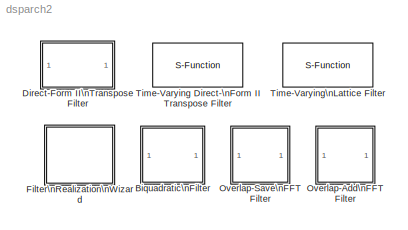
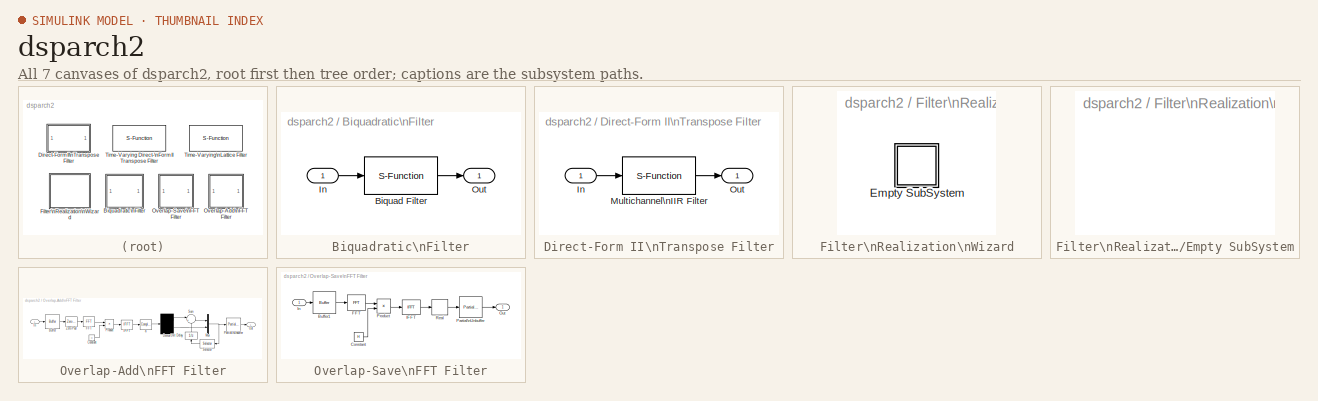
[diagram: thumbnail index - all 7 canvases of the model, root first then tree order]
MODEL dsparch2
KIND library
BLOCK [SubSystem] Biquadratic\nFilter
  MaskCallbackString = ||dspblkbiquad|
  MaskDescription = Direct-Form II Transpose implementation of second-order (biquadratic) IIR filter sections.  Coefficients must be expressed using an Mx6 second-order section (SOS) matrix.  The number of second-order sections (M) appears in the lower-right corner of the icon.\n\nSee \"ss2sos\" for more information on SOS matrices.
  MaskDisplay = plot(x,y);\ntext(.975,0.1,s,'horiz','right');\ntext(0.1,.9,'BiQuad')\n
  MaskEnableString = on,on,on,off
  MaskHelp = web(dspbhelp);
  MaskIconFrame = on
  MaskIconOpaque = on
  MaskIconRotate = none
  MaskIconUnits = normalized
  MaskInitialization = [x,y,s]=dspblkbiquad('icon',sos);\n[h,fchans]=dspblkbiquad('init',sos,frame,nchans);\n\n
  MaskPromptString = SOS matrix:|Initial conditions:|Frame-based inputs|Number of channels:
  MaskSelfModifiable = on
  MaskStyleString = edit,edit,checkbox,edit
  MaskTunableValueString = off,off,off,off
  MaskType = Biquadratic Filter
  MaskValueString = [0.0864663705046504 0.172963265055902 0.0864691222801249 1 -0.835073472386969 0.180972230227646;0.0910631887324868 0.184433970597206 0.0934004367730367 1 -0.890597579638043 0.259495175740772;0.10515199960233 0.210266887507767 0.105148652679738 1 -1.0153398584545 0.43590739824434;0.13033445611126 0.257366152017378 0.127072973655515 1 -1.24277336269468 0.75754694447883]|0|off|1
  MaskVariables = sos=@1;ic=@2;frame=@3;nchans=@4;
  MaskVisibilityString = on,on,on,on
  Ports = [1, 1, 0, 0, 0]
  ShowPortLabels = on
BLOCK [S-Function] Biquadratic\nFilter/Biquad Filter
  FunctionName = sdspbiquad
  Parameters = h,ic,fchans
  PortCounts = []
  Ports = [1, 1, 0, 0, 0]
  SFunctionModules = ''
BLOCK [Inport] Biquadratic\nFilter/In
  DataType = auto
  Interpolate = on
  Port = 1
  PortWidth = -1
  SampleTime = -1
  SignalType = auto
BLOCK [Outport] Biquadratic\nFilter/Out
  InitialOutput = 0
  OutputWhenDisabled = held
  Port = 1
BLOCK [SubSystem] Direct-Form II\nTranspose Filter
  MaskCallbackString = |||dspblkdf2t|
  MaskDescription = Independently filters each channel of input over time using a Direct-Form II Transpose  implementation.  Initial conditions are interpreted in the same manner as MATLAB's \"filter\" command.\n\nFor frame-based processing, each column of the input matrix represents one frame of data from a single channel.
  MaskDisplay = plot(x,y);\ntext(0.5,.85,'DF2T','horiz','center');
  MaskEnableString = on,on,on,on,off
  MaskHelp = web(dspbhelp);
  MaskIconFrame = on
  MaskIconOpaque = on
  MaskIconRotate = none
  MaskIconUnits = normalized
  MaskInitialization = [x,y] = dspblkdf2t('icon',num,den);\nif strcmp(frame,'off'), numCHANS=-1; end\n[num,den] = dspblkdf2t('design',num,den);\n
  MaskPromptString = Numerator:|Denominator:|Initial conditions:|Frame-based inputs|Number of channels:
  MaskSelfModifiable = on
  MaskStyleString = edit,edit,edit,checkbox,edit
  MaskTunableValueString = on,on,on,off,off
  MaskType = Direct-Form II Transpose Filter
  MaskValueString = [1 2]|1|0|off|1
  MaskVariables = num=@1;den=@2;ic=@3;frame=&4;numCHANS=@5;
  MaskVisibilityString = on,on,on,on,on
  Ports = [1, 1, 0, 0, 0]
  ShowPortLabels = on
BLOCK [Inport] Direct-Form II\nTranspose Filter/In
  DataType = auto
  Interpolate = on
  Port = 1
  PortWidth = -1
  SampleTime = -1
  SignalType = auto
BLOCK [S-Function] Direct-Form II\nTranspose Filter/Multichannel\nIIR Filter
  FunctionName = sdspdf2t
  Parameters = num,den,ic,numCHANS
  PortCounts = []
  Ports = [1, 1, 0, 0, 0]
  SFunctionModules = ''
BLOCK [Outport] Direct-Form II\nTranspose Filter/Out
  InitialOutput = 0
  OutputWhenDisabled = held
  Port = 1
BLOCK [SubSystem] Filter\nRealization\nWizard
  MaskDescription = Automatically construct filter realizations with specific architectures, using sum, gain, and delay blocks.
  MaskDisplay = plot([[xl NaN xz NaN xg NaN xs NaN]*.9-.075 xw],\n[[yl NaN yz NaN yg NaN ys NaN]*.9-.1 yw]);
  MaskHelp = web(dspbhelp);
  MaskIconFrame = on
  MaskIconOpaque = on
  MaskIconRotate = none
  MaskIconUnits = normalized
  MaskInitialization = xw=[NaN 0.8 0.8 NaN 0.687 0.743 NaN 0.64 0.72 NaN 0.687 0.743 NaN 0.8 0.8 NaN 0.913 0.857 NaN 0.96 0.88 NaN 0.808 0.792 0.961 0.978 0.808 NaN 0.825 0.808 NaN 0.961 0.944];\nyw=[NaN 0.64 0.72 NaN 0.687 0.743 NaN 0.8 0.8 NaN 0.913 0.857 NaN 0.96 0.88 NaN 0.913 0.857 NaN 0.8 0.8 NaN 0.808 0.792 0.622 0.639 0.808 NaN 0.792 0.775 NaN 0.656 0.639];\n\nxl = [.1 .7 NaN .3 .3 NaN .7 .7 NaN .3 .3 NaN .7 .7 ...<+353ch>
  MaskType = Filter Realization Wizard
  OpenFcn = dspfwiz
  Ports = [0, 0, 0, 0, 0]
  ShowPortLabels = on
BLOCK [SubSystem] Filter\nRealization\nWizard/Empty SubSystem
  Ports = [0, 0, 0, 0, 0]
  ShowPortLabels = on
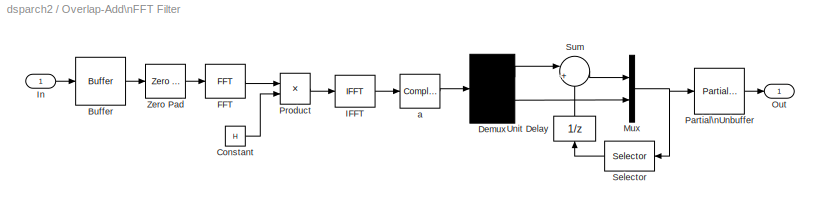
BLOCK [SubSystem] Overlap-Add\nFFT Filter
  MaskCallbackString = |
  MaskDescription = FFT based filtering using the overlap-add algorithm.
  MaskDisplay = disp('Overlap\\nAdd');\n... plot(log10(abs(H(1:(N/2)))))
  MaskEnableString = on,on
  MaskHelp = web(dspbhelp);
  MaskIconFrame = on
  MaskIconOpaque = on
  MaskIconRotate = none
  MaskIconUnits = autoscale
  MaskInitialization = M = length(h); N=2.^nextpow2(Nfft); L=N-M+1;\nH = freqz(h,1,N,'whole');\n
  MaskPromptString = FFT size: |FIR coefficients:
  MaskStyleString = edit,edit
  MaskTunableValueString = off,off
  MaskType = Overlap-Add FFT Filter
  MaskValueString = 64|fir1(20,0.1)
  MaskVariables = Nfft=@1;h=@2;
  MaskVisibilityString = on,on
  Ports = [1, 1, 0, 0, 0]
  ShowPortLabels = on
BLOCK [Reference] Overlap-Add\nFFT Filter/Buffer  REF=dspbuff2/Buffer
  N = L
  Ports = [1, 1, 0, 0, 0]
  SourceBlock = dspbuff2/Buffer
  SourceType = Buffer
  V = 0
  ic = 0
BLOCK [Constant] Overlap-Add\nFFT Filter/Constant
  Value = H
BLOCK [Demux] Overlap-Add\nFFT Filter/Demux
  Outputs = [M-1 L]
  Ports = [1, 2, 0, 0, 0]
BLOCK [Reference] Overlap-Add\nFFT Filter/FFT  REF=dspxfrm2/FFT
  Ports = [1, 1, 0, 0, 0]
  SourceBlock = dspxfrm2/FFT
  SourceType = FFT
  nchans = 1
BLOCK [Reference] Overlap-Add\nFFT Filter/IFFT  REF=dspxfrm2/IFFT
  Ports = [1, 1, 0, 0, 0]
  SourceBlock = dspxfrm2/IFFT
  SourceType = IFFT
  cs_in = off
  mode = Complex
  nchans = 1
BLOCK [Inport] Overlap-Add\nFFT Filter/In
  DataType = auto
  Interpolate = on
  Port = 1
  PortWidth = -1
  SampleTime = -1
  SignalType = auto
BLOCK [Mux] Overlap-Add\nFFT Filter/Mux
  DisplayOption = bar
  Inputs = 2
  Ports = [2, 1, 0, 0, 0]
BLOCK [Outport] Overlap-Add\nFFT Filter/Out
  InitialOutput = 0
  OutputWhenDisabled = held
  Port = 1
BLOCK [Reference] Overlap-Add\nFFT Filter/Partial\nUnbuffer  REF=dspbuff2/Partial\nUnbuffer
  N = N
  N1 = 1
  N2 = L
  Ports = [1, 1, 0, 0, 0]
  SourceBlock = dspbuff2/Partial\nUnbuffer
  SourceType = Partial Unbuffer
  ic = 0
  num_chans = 1
BLOCK [Product] Overlap-Add\nFFT Filter/Product
  Inputs = 2
  Ports = [2, 1, 0, 0, 0]
  SaturateOnIntegerOverflow = on
BLOCK [Selector] Overlap-Add\nFFT Filter/Selector
  Elements = [(N-M+2):N]
  InputPortWidth = N
BLOCK [Sum] Overlap-Add\nFFT Filter/Sum
  IconShape = round
  Inputs = |++
  Ports = [2, 1, 0, 0, 0]
  SaturateOnIntegerOverflow = on
BLOCK [UnitDelay] Overlap-Add\nFFT Filter/Unit Delay
  SampleTime = -1
  X0 = 0
BLOCK [Reference] Overlap-Add\nFFT Filter/Zero Pad  REF=dspbdsp2/Zero Pad
  Ports = [1, 1, 0, 0, 0]
  SourceBlock = dspbdsp2/Zero Pad
  SourceType = Zero Pad
  nchans = 1
  pad = N
  trunc = on
BLOCK [ComplexToRealImag] Overlap-Add\nFFT Filter/a
  Output = Real
  Ports = [1, 1, 0, 0, 0]
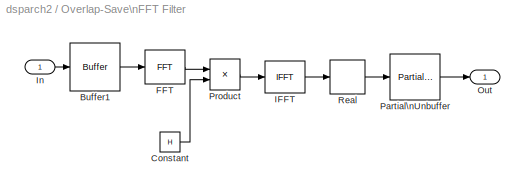
BLOCK [SubSystem] Overlap-Save\nFFT Filter
  MaskCallbackString = |
  MaskDescription = FFT based filtering using the overlap-save algorithm.
  MaskDisplay = disp('Overlap\\nSave');\n... plot(log10(abs(H(1:(nfft/2)))))
  MaskEnableString = on,on
  MaskHelp = web(dspbhelp);
  MaskIconFrame = on
  MaskIconOpaque = on
  MaskIconRotate = none
  MaskIconUnits = autoscale
  MaskInitialization = nfft = 2.^nextpow2(nfft_in);\nn = length(h); H = freqz(h,1,nfft,'whole');\n
  MaskPromptString = FFT size: |FIR coefficients:
  MaskStyleString = edit,edit
  MaskTunableValueString = off,off
  MaskType = Overlap-Save FFT Filter
  MaskValueString = 64|fir1(20,0.1)
  MaskVariables = nfft_in=@1;h=@2;
  MaskVisibilityString = on,on
  Ports = [1, 1, 0, 0, 0]
  ShowPortLabels = on
BLOCK [Reference] Overlap-Save\nFFT Filter/Buffer1  REF=dspbuff2/Buffer
  N = nfft
  Ports = [1, 1, 0, 0, 0]
  SourceBlock = dspbuff2/Buffer
  SourceType = Buffer
  V = n-1
  ic = 0
BLOCK [Constant] Overlap-Save\nFFT Filter/Constant
  Value = H
BLOCK [Reference] Overlap-Save\nFFT Filter/FFT  REF=dspxfrm2/FFT
  Ports = [1, 1, 0, 0, 0]
  SourceBlock = dspxfrm2/FFT
  SourceType = FFT
  nchans = 1
BLOCK [Reference] Overlap-Save\nFFT Filter/IFFT  REF=dspxfrm2/IFFT
  Ports = [1, 1, 0, 0, 0]
  SourceBlock = dspxfrm2/IFFT
  SourceType = IFFT
  cs_in = off
  mode = Complex
  nchans = 1
BLOCK [Inport] Overlap-Save\nFFT Filter/In
  DataType = auto
  Interpolate = on
  Port = 1
  PortWidth = -1
  SampleTime = -1
  SignalType = auto
BLOCK [Outport] Overlap-Save\nFFT Filter/Out
  InitialOutput = 0
  OutputWhenDisabled = held
  Port = 1
BLOCK [Reference] Overlap-Save\nFFT Filter/Partial\nUnbuffer  REF=dspbuff2/Partial\nUnbuffer
  N = nfft
  N1 = n
  N2 = nfft
  Ports = [1, 1, 0, 0, 0]
  SourceBlock = dspbuff2/Partial\nUnbuffer
  SourceType = Partial Unbuffer
  ic = 0
  num_chans = 1
BLOCK [Product] Overlap-Save\nFFT Filter/Product
  Inputs = 2
  Ports = [2, 1, 0, 0, 0]
  SaturateOnIntegerOverflow = on
BLOCK [ComplexToRealImag] Overlap-Save\nFFT Filter/Real
  Output = Real
  Ports = [1, 1, 0, 0, 0]
BLOCK [S-Function] Time-Varying Direct-\nForm II Transpose Filter
  FunctionName = sdspvdf2t
  MaskCallbackString = |||dspblkvdf2t||
  MaskDescription = Independently filters each channel of input over time using a Direct-Form II Transpose implementation.  Filter coefficients can vary over time.\n\nInitial conditions are interpreted in the same manner as MATLAB's \"filter\" command.  However, this time-varying filter uses a different normalization scheme and the initial conditions and internal filter states are not equivalent to those from \"filte...<+320ch>
  MaskDisplay = text(0.5,0.85,s.icon,'horiz','center');\nplot(s.x, s.y);\nport_label('input',1,'In');\nport_label('output',1,'Out');\nport_label('input',s.i1,s.s1);\nport_label('input',s.i2,s.s2);
  MaskEnableString = on,on,on,on,off,off
  MaskHelp = web(dspbhelp);
  MaskIconFrame = on
  MaskIconOpaque = on
  MaskIconRotate = none
  MaskIconUnits = normalized
  MaskInitialization = s = dspblkvdf2t(NumDen);\nif strcmp(frame,'off') numCHANS = -1; end
  MaskPromptString = Filter type:|Initial conditions:|Support non-normalized filters|Frame-based inputs|Number of channels:|Filter update rate:
  MaskSelfModifiable = on
  MaskStyleString = popup(Pole-Zero (IIR)|All-Zero (FIR)|All-Pole (AR)),edit,checkbox,checkbox,edit,popup(One Filter Per Sample Time|One Filter Per Frame Time)
  MaskTunableValueString = off,off,off,off,off,off
  MaskType = Time-Varying Direct-Form II Transpose Filter
  MaskValueString = Pole-Zero (IIR)|0|on|off|1|One Filter Per Sample Time
  MaskVariables = NumDen=@1;ic=@2;filtCheck=@3;frame=&4;numCHANS=@5;FiltPerFrame=@6;
  MaskVisibilityString = on,on,on,on,on,on
  Parameters = NumDen, ic, filtCheck,numCHANS, FiltPerFrame
  PortCounts = []
  Ports = [3, 1, 0, 0, 0]
  SFunctionModules = ''
BLOCK [S-Function] Time-Varying\nLattice Filter
  FunctionName = sdspvlat
  MaskCallbackString = ||dspblkvlat||
  MaskDescription = Independently filters each channel of input over time using a Lattice implementation.  Filter coefficients can vary over time.\n\nFor frame-based processing, multiple data channels may be passed as a frame matrix, with one channel per column.  The filter update rate is selectable.
  MaskDisplay = plot(x,y);\nport_label('input',1,'In');\nport_label('output',1,'Out');\nport_label('input',s.i1,s.s1);\nport_label('input',s.i2,s.s2);
  MaskEnableString = on,on,on,off,off
  MaskHelp = web(dspbhelp);
  MaskIconFrame = on
  MaskIconOpaque = on
  MaskIconRotate = none
  MaskIconUnits = normalized
  MaskInitialization = [x,y,s] = dspblkvlat(ARMA);\nif strcmp(frame,'off') numCHANS = -1; end
  MaskPromptString = Filter type:|Initial conditions:|Frame-based inputs|Number of channels:|Filter update rate:
  MaskSelfModifiable = on
  MaskStyleString = popup(All-Zero (MA)|All-Pole (AR)),edit,checkbox,edit,popup(One Filter Per Sample Time|One Filter Per Frame Time)
  MaskTunableValueString = off,off,off,off,off
  MaskType = Time-Varying Lattice Filter
  MaskValueString = All-Zero (MA)|0|off|1|One Filter Per Sample Time
  MaskVariables = ARMA=@1;ic=@2;frame=&3;numCHANS=@4;FiltPerFrame=@5;
  MaskVisibilityString = on,on,on,on,on
  Parameters = ARMA, ic, numCHANS, FiltPerFrame
  PortCounts = []
  Ports = [2, 1, 0, 0, 0]
  SFunctionModules = ''
LINE Biquadratic\nFilter/Biquad Filter:1 -> Biquadratic\nFilter/Out:1
LINE Biquadratic\nFilter/In:1 -> Biquadratic\nFilter/Biquad Filter:1
LINE Direct-Form II\nTranspose Filter/In:1 -> Direct-Form II\nTranspose Filter/Multichannel\nIIR Filter:1
LINE Direct-Form II\nTranspose Filter/Multichannel\nIIR Filter:1 -> Direct-Form II\nTranspose Filter/Out:1
LINE Overlap-Add\nFFT Filter/Buffer:1 -> Overlap-Add\nFFT Filter/Zero Pad:1
LINE Overlap-Add\nFFT Filter/Constant:1 -> Overlap-Add\nFFT Filter/Product:2
LINE Overlap-Add\nFFT Filter/Demux:1 -> Overlap-Add\nFFT Filter/Sum:1
LINE Overlap-Add\nFFT Filter/Demux:2 -> Overlap-Add\nFFT Filter/Mux:2
LINE Overlap-Add\nFFT Filter/FFT:1 -> Overlap-Add\nFFT Filter/Product:1
LINE Overlap-Add\nFFT Filter/IFFT:1 -> Overlap-Add\nFFT Filter/a:1
LINE Overlap-Add\nFFT Filter/In:1 -> Overlap-Add\nFFT Filter/Buffer:1
NET Overlap-Add\nFFT Filter/Mux:1 -> Overlap-Add\nFFT Filter/Partial\nUnbuffer:1, Overlap-Add\nFFT Filter/Selector:1
LINE Overlap-Add\nFFT Filter/Partial\nUnbuffer:1 -> Overlap-Add\nFFT Filter/Out:1
LINE Overlap-Add\nFFT Filter/Product:1 -> Overlap-Add\nFFT Filter/IFFT:1
LINE Overlap-Add\nFFT Filter/Selector:1 -> Overlap-Add\nFFT Filter/Unit Delay:1
LINE Overlap-Add\nFFT Filter/Sum:1 -> Overlap-Add\nFFT Filter/Mux:1
LINE Overlap-Add\nFFT Filter/Unit Delay:1 -> Overlap-Add\nFFT Filter/Sum:2
LINE Overlap-Add\nFFT Filter/Zero Pad:1 -> Overlap-Add\nFFT Filter/FFT:1
LINE Overlap-Add\nFFT Filter/a:1 -> Overlap-Add\nFFT Filter/Demux:1
LINE Overlap-Save\nFFT Filter/Buffer1:1 -> Overlap-Save\nFFT Filter/FFT:1
LINE Overlap-Save\nFFT Filter/Constant:1 -> Overlap-Save\nFFT Filter/Product:2
LINE Overlap-Save\nFFT Filter/FFT:1 -> Overlap-Save\nFFT Filter/Product:1
LINE Overlap-Save\nFFT Filter/IFFT:1 -> Overlap-Save\nFFT Filter/Real:1
LINE Overlap-Save\nFFT Filter/In:1 -> Overlap-Save\nFFT Filter/Buffer1:1
LINE Overlap-Save\nFFT Filter/Partial\nUnbuffer:1 -> Overlap-Save\nFFT Filter/Out:1
LINE Overlap-Save\nFFT Filter/Product:1 -> Overlap-Save\nFFT Filter/IFFT:1
LINE Overlap-Save\nFFT Filter/Real:1 -> Overlap-Save\nFFT Filter/Partial\nUnbuffer:1
note: NET lines group one-source signal fan-out (src -> all destinations, sorted); 1:1 wires keep LINE
